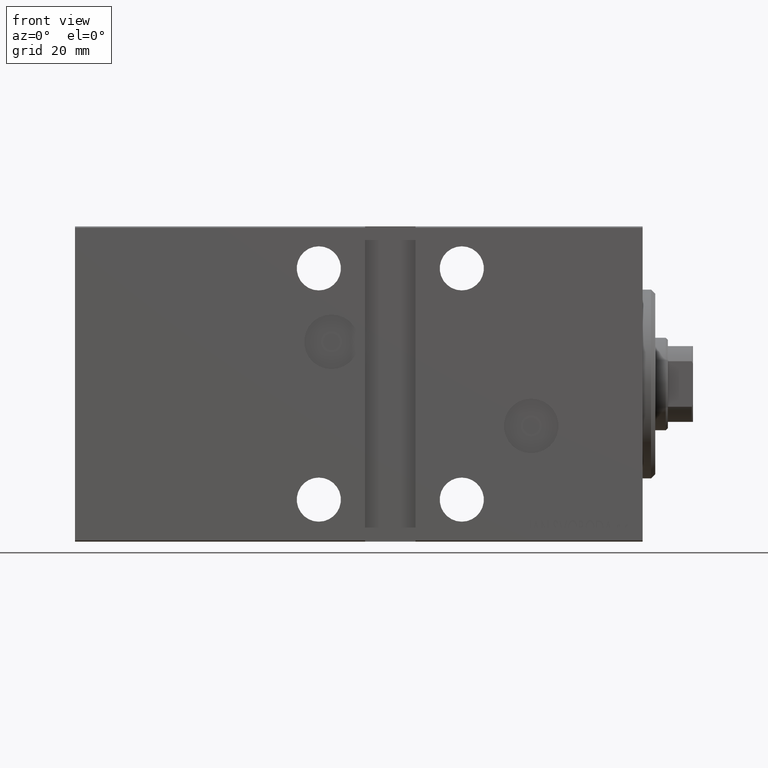
[diagram: clean part render]
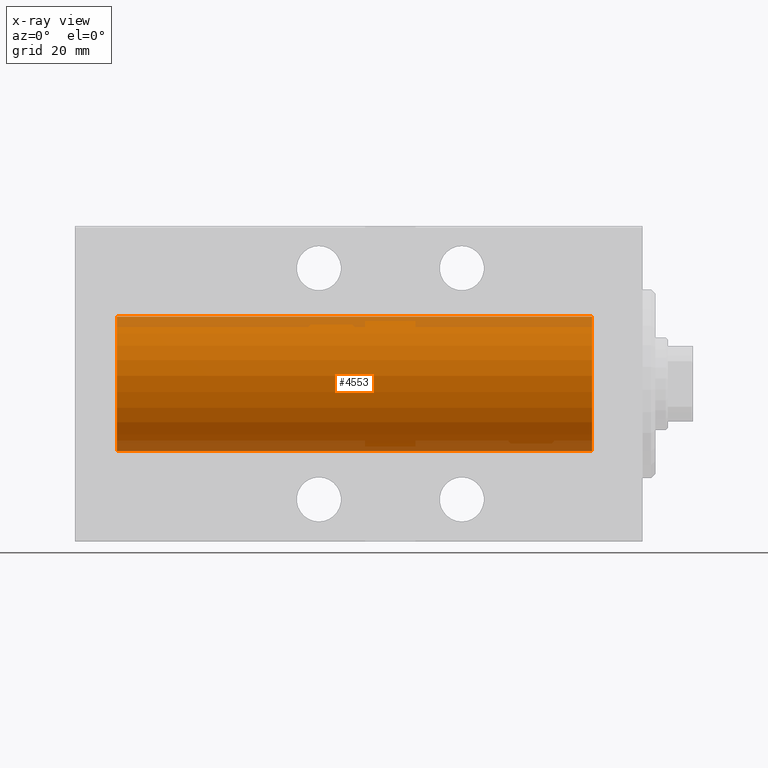
[diagram: x-ray — body ghosted, one internal face saturated and labeled with its STEP entity id]
A machine part, front view, then the same camera in x-ray: the body is ghosted and one INTERNAL B-rep face — a face not visible from any outside direction — is saturated and labeled: STEP entity #4553.
In plain terms, the highlighted cylindrical surface (partial cylindrical patch) has radius 16 mm, axis along (1, 0, -0).
Its self-contained STEP definition (entity closure, byte-faithful):
#251 = DIRECTION ( 'NONE',  ( -1.000000000000000000, -0.000000000000000000, -0.000000000000000000 ) ) ;
#701 = CARTESIAN_POINT ( 'NONE',  ( 125.0000000000000000, 0.000000000000000000, 16.00000000000000000 ) ) ;
#1979 = CYLINDRICAL_SURFACE ( 'NONE', #42922, 16.00000000000000000 ) ;
#2948 = CARTESIAN_POINT ( 'NONE',  ( 11.99999999999999645, 1.959434878635765131E-15, -16.00000000000000000 ) ) ;
#4553 = ADVANCED_FACE ( 'NONE', ( #28997 ), #1979, .F. ) ;
#6153 = ORIENTED_EDGE ( 'NONE', *, *, #7111, .F. ) ;
#6613 = EDGE_CURVE ( 'NONE', #31756, #19109, #24602, .T. ) ;
#7111 = EDGE_CURVE ( 'NONE', #40863, #29995, #22458, .T. ) ;
#7212 = DIRECTION ( 'NONE',  ( -1.000000000000000000, 0.000000000000000000, 0.000000000000000000 ) ) ;
#9060 = DIRECTION ( 'NONE',  ( -1.000000000000000000, -0.000000000000000000, -0.000000000000000000 ) ) ;
#11388 = ORIENTED_EDGE ( 'NONE', *, *, #20535, .F. ) ;
#12279 = CARTESIAN_POINT ( 'NONE',  ( 125.0000000000000000, 1.959434878635765131E-15, -16.00000000000000000 ) ) ;
#17089 = AXIS2_PLACEMENT_3D ( 'NONE', #35470, #32378, #28397 ) ;
#17385 = DIRECTION ( 'NONE',  ( 0.000000000000000000, 0.000000000000000000, 1.000000000000000000 ) ) ;
#18243 = VECTOR ( 'NONE', #38628, 1000.000000000000000 ) ;
#18610 = CIRCLE ( 'NONE', #39111, 16.00000000000000000 ) ;
#19109 = VERTEX_POINT ( 'NONE', #40266 ) ;
#20535 = EDGE_CURVE ( 'NONE', #31756, #40863, #29116, .T. ) ;
#22458 = LINE ( 'NONE', #12279, #18243 ) ;
#24602 = LINE ( 'NONE', #701, #39443 ) ;
#25695 = EDGE_CURVE ( 'NONE', #19109, #29995, #18610, .T. ) ;
#28037 = ORIENTED_EDGE ( 'NONE', *, *, #6613, .T. ) ;
#28397 = DIRECTION ( 'NONE',  ( 0.000000000000000000, 0.000000000000000000, 1.000000000000000000 ) ) ;
#28997 = FACE_OUTER_BOUND ( 'NONE', #29281, .T. ) ;
#29116 = CIRCLE ( 'NONE', #17089, 16.00000000000000000 ) ;
#29281 = EDGE_LOOP ( 'NONE', ( #6153, #11388, #28037, #35882 ) ) ;
#29995 = VERTEX_POINT ( 'NONE', #2948 ) ;
#31756 = VERTEX_POINT ( 'NONE', #43085 ) ;
#32378 = DIRECTION ( 'NONE',  ( -1.000000000000000000, 0.000000000000000000, 0.000000000000000000 ) ) ;
#32543 = DIRECTION ( 'NONE',  ( 0.000000000000000000, 0.000000000000000000, 1.000000000000000000 ) ) ;
#33190 = CARTESIAN_POINT ( 'NONE',  ( 11.99999999999999645, 0.000000000000000000, 0.000000000000000000 ) ) ;
#35413 = CARTESIAN_POINT ( 'NONE',  ( 125.0000000000000000, 0.000000000000000000, 0.000000000000000000 ) ) ;
#35470 = CARTESIAN_POINT ( 'NONE',  ( 125.0000000000000000, 0.000000000000000000, 0.000000000000000000 ) ) ;
#35882 = ORIENTED_EDGE ( 'NONE', *, *, #25695, .T. ) ;
#37025 = CARTESIAN_POINT ( 'NONE',  ( 125.0000000000000000, 1.959434878635765131E-15, -16.00000000000000000 ) ) ;
#38628 = DIRECTION ( 'NONE',  ( -1.000000000000000000, -0.000000000000000000, -0.000000000000000000 ) ) ;
#39111 = AXIS2_PLACEMENT_3D ( 'NONE', #33190, #7212, #17385 ) ;
#39443 = VECTOR ( 'NONE', #251, 1000.000000000000000 ) ;
#40266 = CARTESIAN_POINT ( 'NONE',  ( 11.99999999999999645, 0.000000000000000000, 16.00000000000000000 ) ) ;
#40863 = VERTEX_POINT ( 'NONE', #37025 ) ;
#42922 = AXIS2_PLACEMENT_3D ( 'NONE', #35413, #9060, #32543 ) ;
#43085 = CARTESIAN_POINT ( 'NONE',  ( 125.0000000000000000, 0.000000000000000000, 16.00000000000000000 ) ) ;